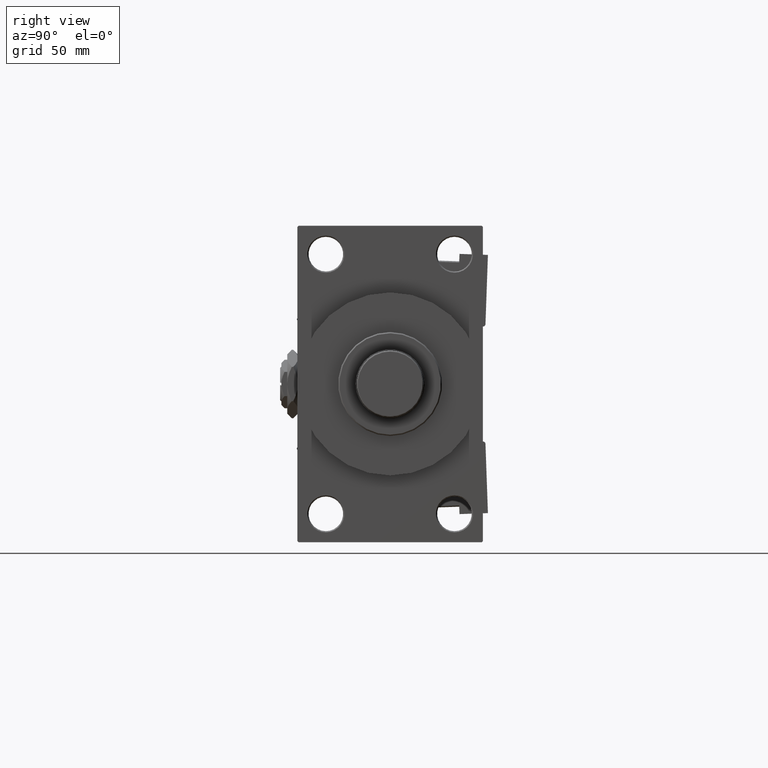
[diagram: clean part render]
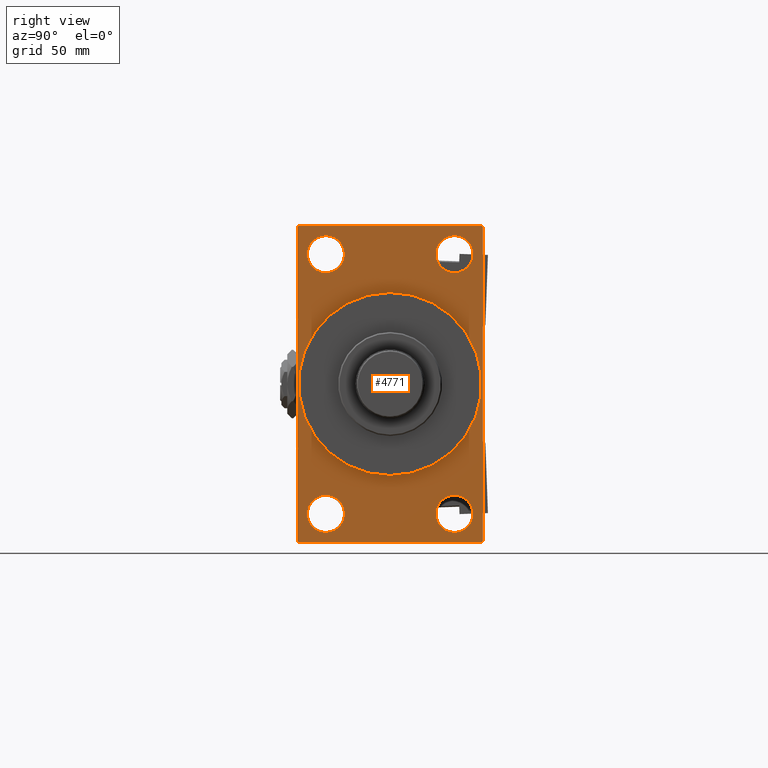
[diagram: same view with one face highlighted and labeled with its STEP entity id]
A machine part, right view. The second image highlights one B-rep face of the part: STEP entity #4771.
In plain terms, the highlighted planar face has unit normal (-1, 0, 0).
Its self-contained STEP definition (entity closure, byte-faithful):
#94 = VECTOR ( 'NONE', #32045, 1000.000000000000000 ) ;
#463 = EDGE_CURVE ( 'NONE', #10619, #44096, #44467, .T. ) ;
#511 = VERTEX_POINT ( 'NONE', #24531 ) ;
#587 = VECTOR ( 'NONE', #44616, 1000.000000000000000 ) ;
#634 = AXIS2_PLACEMENT_3D ( 'NONE', #23341, #39342, #27802 ) ;
#1005 = CARTESIAN_POINT ( 'NONE',  ( 167.9999999999999716, 37.49999999999999289, -63.50000000000001421 ) ) ;
#1022 = LINE ( 'NONE', #16527, #587 ) ;
#1245 = VERTEX_POINT ( 'NONE', #42417 ) ;
#1397 = VERTEX_POINT ( 'NONE', #9028 ) ;
#1630 = CARTESIAN_POINT ( 'NONE',  ( 167.9999999999999716, -25.99999999999999645, 52.50000000000000000 ) ) ;
#2341 = VERTEX_POINT ( 'NONE', #31078 ) ;
#2364 = CARTESIAN_POINT ( 'NONE',  ( 167.9999999999999716, 26.00000000000000000, -52.49999999999999289 ) ) ;
#2486 = CARTESIAN_POINT ( 'NONE',  ( 167.9999999999999716, -25.99999999999999645, -60.00000000000000000 ) ) ;
#2882 = ORIENTED_EDGE ( 'NONE', *, *, #20352, .T. ) ;
#3032 = CIRCLE ( 'NONE', #10564, 7.500000000000007105 ) ;
#3689 = EDGE_CURVE ( 'NONE', #42280, #511, #14860, .T. ) ;
#3713 = CARTESIAN_POINT ( 'NONE',  ( 167.9999999999999716, -25.99999999999999645, -44.99999999999998579 ) ) ;
#3884 = FACE_OUTER_BOUND ( 'NONE', #49627, .T. ) ;
#3921 = EDGE_LOOP ( 'NONE', ( #24857, #25163 ) ) ;
#4039 = CARTESIAN_POINT ( 'NONE',  ( 167.9999999999999716, -37.49999999999999289, 63.50000000000000000 ) ) ;
#4134 = VERTEX_POINT ( 'NONE', #23977 ) ;
#4135 = DIRECTION ( 'NONE',  ( -0.000000000000000000, 0.7071067811865376918, 0.7071067811865573427 ) ) ;
#4194 = CIRCLE ( 'NONE', #19303, 7.500000000000007105 ) ;
#4771 = ADVANCED_FACE ( 'NONE', ( #50915, #7045, #51435, #15455, #7308, #3884 ), #28062, .F. ) ;
#4924 = EDGE_CURVE ( 'NONE', #24704, #2341, #8604, .T. ) ;
#5695 = DIRECTION ( 'NONE',  ( 0.000000000000000000, 0.7071067811865573427, -0.7071067811865378028 ) ) ;
#5732 = CARTESIAN_POINT ( 'NONE',  ( 167.9999999999999716, 26.00000000000000000, -52.49999999999999289 ) ) ;
#5768 = AXIS2_PLACEMENT_3D ( 'NONE', #49268, #12260, #36411 ) ;
#6797 = ORIENTED_EDGE ( 'NONE', *, *, #20649, .T. ) ;
#7045 = FACE_BOUND ( 'NONE', #18859, .T. ) ;
#7180 = EDGE_CURVE ( 'NONE', #24121, #18329, #30128, .T. ) ;
#7308 = FACE_BOUND ( 'NONE', #11552, .T. ) ;
#7585 = ORIENTED_EDGE ( 'NONE', *, *, #17393, .F. ) ;
#7637 = CIRCLE ( 'NONE', #36129, 37.00000000000000000 ) ;
#7645 = LINE ( 'NONE', #27108, #16072 ) ;
#8514 = CARTESIAN_POINT ( 'NONE',  ( 167.9999999999999716, -37.49999999999999289, 63.50000000000000000 ) ) ;
#8604 = LINE ( 'NONE', #32775, #11546 ) ;
#9028 = CARTESIAN_POINT ( 'NONE',  ( 167.9999999999999716, -25.99999999999999645, 60.00000000000000711 ) ) ;
#10217 = CARTESIAN_POINT ( 'NONE',  ( 167.9999999999999716, -25.99999999999999645, 52.50000000000000000 ) ) ;
#10551 = DIRECTION ( 'NONE',  ( 0.000000000000000000, -0.7071067811865474617, 0.7071067811865474617 ) ) ;
#10564 = AXIS2_PLACEMENT_3D ( 'NONE', #2364, #29957, #50169 ) ;
#10619 = VERTEX_POINT ( 'NONE', #30543 ) ;
#10743 = EDGE_LOOP ( 'NONE', ( #6797, #38582 ) ) ;
#10809 = LINE ( 'NONE', #34713, #34260 ) ;
#11041 = LINE ( 'NONE', #19699, #94 ) ;
#11115 = CARTESIAN_POINT ( 'NONE',  ( 167.9999999999999716, 26.00000000000000000, 60.00000000000000000 ) ) ;
#11546 = VECTOR ( 'NONE', #5695, 1000.000000000000000 ) ;
#11552 = EDGE_LOOP ( 'NONE', ( #49260, #18860 ) ) ;
#11697 = VECTOR ( 'NONE', #4135, 1000.000000000000114 ) ;
#12014 = ORIENTED_EDGE ( 'NONE', *, *, #33351, .T. ) ;
#12049 = ORIENTED_EDGE ( 'NONE', *, *, #4924, .T. ) ;
#12222 = EDGE_CURVE ( 'NONE', #51936, #24735, #44032, .T. ) ;
#12260 = DIRECTION ( 'NONE',  ( 1.000000000000000000, 0.000000000000000000, 0.000000000000000000 ) ) ;
#12300 = AXIS2_PLACEMENT_3D ( 'NONE', #10217, #38302, #42241 ) ;
#13144 = ORIENTED_EDGE ( 'NONE', *, *, #13320, .T. ) ;
#13320 = EDGE_CURVE ( 'NONE', #32092, #10619, #45607, .T. ) ;
#13468 = DIRECTION ( 'NONE',  ( 0.000000000000000000, 0.000000000000000000, 1.000000000000000000 ) ) ;
#13530 = EDGE_CURVE ( 'NONE', #24282, #48552, #4194, .T. ) ;
#13741 = CIRCLE ( 'NONE', #24641, 7.500000000000007105 ) ;
#13915 = CARTESIAN_POINT ( 'NONE',  ( 167.9999999999999716, 26.00000000000000000, -60.00000000000000000 ) ) ;
#14860 = CIRCLE ( 'NONE', #40817, 7.500000000000007105 ) ;
#15455 = FACE_BOUND ( 'NONE', #42320, .T. ) ;
#15498 = EDGE_CURVE ( 'NONE', #18329, #24121, #7637, .T. ) ;
#15760 = CARTESIAN_POINT ( 'NONE',  ( 167.9999999999999716, 37.50000000000000000, 63.49999999999998579 ) ) ;
#16072 = VECTOR ( 'NONE', #43094, 1000.000000000000000 ) ;
#16491 = CIRCLE ( 'NONE', #12300, 7.500000000000007105 ) ;
#16527 = CARTESIAN_POINT ( 'NONE',  ( 167.9999999999999716, -37.49999999999999289, 63.99999999999997158 ) ) ;
#16555 = EDGE_CURVE ( 'NONE', #28999, #24735, #11041, .T. ) ;
#17061 = DIRECTION ( 'NONE',  ( -1.000000000000000000, 0.000000000000000000, -0.000000000000000000 ) ) ;
#17386 = ORIENTED_EDGE ( 'NONE', *, *, #463, .T. ) ;
#17393 = EDGE_CURVE ( 'NONE', #51936, #2341, #7645, .T. ) ;
#18329 = VERTEX_POINT ( 'NONE', #26855 ) ;
#18859 = EDGE_LOOP ( 'NONE', ( #48236, #38343 ) ) ;
#18860 = ORIENTED_EDGE ( 'NONE', *, *, #15498, .F. ) ;
#19303 = AXIS2_PLACEMENT_3D ( 'NONE', #29808, #41596, #37927 ) ;
#19518 = VERTEX_POINT ( 'NONE', #13915 ) ;
#19699 = CARTESIAN_POINT ( 'NONE',  ( 167.9999999999999716, 37.50000000000000000, 63.99999999999998579 ) ) ;
#20352 = EDGE_CURVE ( 'NONE', #511, #42280, #38002, .T. ) ;
#20649 = EDGE_CURVE ( 'NONE', #4134, #1397, #28683, .T. ) ;
#20999 = VECTOR ( 'NONE', #25927, 1000.000000000000000 ) ;
#21968 = AXIS2_PLACEMENT_3D ( 'NONE', #43404, #31097, #26642 ) ;
#23341 = CARTESIAN_POINT ( 'NONE',  ( 167.9999999999999716, 0.000000000000000000, 0.000000000000000000 ) ) ;
#23679 = AXIS2_PLACEMENT_3D ( 'NONE', #1630, #37091, #13468 ) ;
#23977 = CARTESIAN_POINT ( 'NONE',  ( 167.9999999999999716, -25.99999999999999645, 44.99999999999999289 ) ) ;
#24121 = VERTEX_POINT ( 'NONE', #33181 ) ;
#24282 = VERTEX_POINT ( 'NONE', #3713 ) ;
#24531 = CARTESIAN_POINT ( 'NONE',  ( 167.9999999999999716, 26.00000000000000000, 44.99999999999998579 ) ) ;
#24641 = AXIS2_PLACEMENT_3D ( 'NONE', #34714, #51246, #50737 ) ;
#24704 = VERTEX_POINT ( 'NONE', #43554 ) ;
#24735 = VERTEX_POINT ( 'NONE', #1005 ) ;
#24857 = ORIENTED_EDGE ( 'NONE', *, *, #31284, .T. ) ;
#25163 = ORIENTED_EDGE ( 'NONE', *, *, #43442, .T. ) ;
#25204 = CARTESIAN_POINT ( 'NONE',  ( 167.9999999999999716, 26.00000000000000000, 52.49999999999999289 ) ) ;
#25206 = CARTESIAN_POINT ( 'NONE',  ( 167.9999999999999716, 37.00000000000002132, -64.00000000000000000 ) ) ;
#25927 = DIRECTION ( 'NONE',  ( 0.000000000000000000, -1.000000000000000000, -1.850371707708594563E-16 ) ) ;
#26642 = DIRECTION ( 'NONE',  ( 0.000000000000000000, 0.000000000000000000, 1.000000000000000000 ) ) ;
#26855 = CARTESIAN_POINT ( 'NONE',  ( 167.9999999999999716, 4.531193156845206793E-15, -37.00000000000000000 ) ) ;
#27108 = CARTESIAN_POINT ( 'NONE',  ( 167.9999999999999716, 37.49999999999999289, -64.00000000000000000 ) ) ;
#27802 = DIRECTION ( 'NONE',  ( -0.000000000000000000, 0.000000000000000000, 1.000000000000000000 ) ) ;
#28062 = PLANE ( 'NONE',  #634 ) ;
#28683 = CIRCLE ( 'NONE', #23679, 7.500000000000007105 ) ;
#28999 = VERTEX_POINT ( 'NONE', #15760 ) ;
#29239 = EDGE_CURVE ( 'NONE', #1397, #4134, #16491, .T. ) ;
#29808 = CARTESIAN_POINT ( 'NONE',  ( 167.9999999999999716, -25.99999999999999645, -52.49999999999999289 ) ) ;
#29957 = DIRECTION ( 'NONE',  ( -1.000000000000000000, 0.000000000000000000, -0.000000000000000000 ) ) ;
#30128 = CIRCLE ( 'NONE', #5768, 37.00000000000000000 ) ;
#30543 = CARTESIAN_POINT ( 'NONE',  ( 167.9999999999999716, -37.00000000000001421, 63.99999999999997158 ) ) ;
#31078 = CARTESIAN_POINT ( 'NONE',  ( 167.9999999999999716, -36.99999999999999289, -64.00000000000001421 ) ) ;
#31097 = DIRECTION ( 'NONE',  ( -1.000000000000000000, 0.000000000000000000, -0.000000000000000000 ) ) ;
#31284 = EDGE_CURVE ( 'NONE', #19518, #1245, #3032, .T. ) ;
#31292 = ORIENTED_EDGE ( 'NONE', *, *, #16555, .F. ) ;
#32045 = DIRECTION ( 'NONE',  ( 0.000000000000000000, -5.421010862427522170E-17, -1.000000000000000000 ) ) ;
#32092 = VERTEX_POINT ( 'NONE', #49653 ) ;
#32775 = CARTESIAN_POINT ( 'NONE',  ( 167.9999999999999716, -36.99999999999999289, -64.00000000000001421 ) ) ;
#33069 = ORIENTED_EDGE ( 'NONE', *, *, #36517, .T. ) ;
#33181 = CARTESIAN_POINT ( 'NONE',  ( 167.9999999999999716, 0.000000000000000000, 37.00000000000000000 ) ) ;
#33351 = EDGE_CURVE ( 'NONE', #44096, #24704, #1022, .T. ) ;
#34260 = VECTOR ( 'NONE', #10551, 1000.000000000000114 ) ;
#34713 = CARTESIAN_POINT ( 'NONE',  ( 167.9999999999999716, 37.00000000000000000, 63.99999999999998579 ) ) ;
#34714 = CARTESIAN_POINT ( 'NONE',  ( 167.9999999999999716, -25.99999999999999645, -52.49999999999999289 ) ) ;
#35706 = DIRECTION ( 'NONE',  ( 1.000000000000000000, 0.000000000000000000, 0.000000000000000000 ) ) ;
#36129 = AXIS2_PLACEMENT_3D ( 'NONE', #39888, #35706, #43309 ) ;
#36411 = DIRECTION ( 'NONE',  ( 0.000000000000000000, 0.000000000000000000, -1.000000000000000000 ) ) ;
#36517 = EDGE_CURVE ( 'NONE', #28999, #32092, #10809, .T. ) ;
#37091 = DIRECTION ( 'NONE',  ( -1.000000000000000000, 0.000000000000000000, -0.000000000000000000 ) ) ;
#37278 = ORIENTED_EDGE ( 'NONE', *, *, #12222, .T. ) ;
#37732 = CIRCLE ( 'NONE', #46954, 7.500000000000007105 ) ;
#37927 = DIRECTION ( 'NONE',  ( 0.000000000000000000, 0.000000000000000000, 1.000000000000000000 ) ) ;
#38002 = CIRCLE ( 'NONE', #21968, 7.500000000000007105 ) ;
#38170 = VECTOR ( 'NONE', #39747, 1000.000000000000000 ) ;
#38302 = DIRECTION ( 'NONE',  ( -1.000000000000000000, 0.000000000000000000, -0.000000000000000000 ) ) ;
#38343 = ORIENTED_EDGE ( 'NONE', *, *, #13530, .T. ) ;
#38582 = ORIENTED_EDGE ( 'NONE', *, *, #29239, .T. ) ;
#39342 = DIRECTION ( 'NONE',  ( -1.000000000000000000, 0.000000000000000000, -0.000000000000000000 ) ) ;
#39747 = DIRECTION ( 'NONE',  ( -0.000000000000000000, -0.7071067811865524577, -0.7071067811865426878 ) ) ;
#39888 = CARTESIAN_POINT ( 'NONE',  ( 167.9999999999999716, 0.000000000000000000, 0.000000000000000000 ) ) ;
#40098 = CARTESIAN_POINT ( 'NONE',  ( 167.9999999999999716, 37.49999999999999289, -63.50000000000001421 ) ) ;
#40817 = AXIS2_PLACEMENT_3D ( 'NONE', #25204, #17061, #45153 ) ;
#41183 = DIRECTION ( 'NONE',  ( -1.000000000000000000, 0.000000000000000000, -0.000000000000000000 ) ) ;
#41596 = DIRECTION ( 'NONE',  ( -1.000000000000000000, 0.000000000000000000, -0.000000000000000000 ) ) ;
#42241 = DIRECTION ( 'NONE',  ( 0.000000000000000000, 0.000000000000000000, 1.000000000000000000 ) ) ;
#42280 = VERTEX_POINT ( 'NONE', #11115 ) ;
#42320 = EDGE_LOOP ( 'NONE', ( #2882, #43522 ) ) ;
#42417 = CARTESIAN_POINT ( 'NONE',  ( 167.9999999999999716, 26.00000000000000000, -44.99999999999998579 ) ) ;
#43094 = DIRECTION ( 'NONE',  ( 0.000000000000000000, -1.000000000000000000, -1.850371707708594563E-16 ) ) ;
#43309 = DIRECTION ( 'NONE',  ( 0.000000000000000000, 0.000000000000000000, -1.000000000000000000 ) ) ;
#43404 = CARTESIAN_POINT ( 'NONE',  ( 167.9999999999999716, 26.00000000000000000, 52.49999999999999289 ) ) ;
#43442 = EDGE_CURVE ( 'NONE', #1245, #19518, #37732, .T. ) ;
#43522 = ORIENTED_EDGE ( 'NONE', *, *, #3689, .T. ) ;
#43554 = CARTESIAN_POINT ( 'NONE',  ( 167.9999999999999716, -37.49999999999999289, -63.50000000000002842 ) ) ;
#44032 = LINE ( 'NONE', #40098, #11697 ) ;
#44096 = VERTEX_POINT ( 'NONE', #8514 ) ;
#44467 = LINE ( 'NONE', #4039, #38170 ) ;
#44616 = DIRECTION ( 'NONE',  ( 0.000000000000000000, 0.000000000000000000, -1.000000000000000000 ) ) ;
#45153 = DIRECTION ( 'NONE',  ( 0.000000000000000000, 0.000000000000000000, 1.000000000000000000 ) ) ;
#45607 = LINE ( 'NONE', #49554, #20999 ) ;
#45647 = DIRECTION ( 'NONE',  ( 0.000000000000000000, 0.000000000000000000, 1.000000000000000000 ) ) ;
#46954 = AXIS2_PLACEMENT_3D ( 'NONE', #5732, #41183, #45647 ) ;
#48087 = EDGE_CURVE ( 'NONE', #48552, #24282, #13741, .T. ) ;
#48236 = ORIENTED_EDGE ( 'NONE', *, *, #48087, .T. ) ;
#48552 = VERTEX_POINT ( 'NONE', #2486 ) ;
#49260 = ORIENTED_EDGE ( 'NONE', *, *, #7180, .F. ) ;
#49268 = CARTESIAN_POINT ( 'NONE',  ( 167.9999999999999716, 0.000000000000000000, 0.000000000000000000 ) ) ;
#49554 = CARTESIAN_POINT ( 'NONE',  ( 167.9999999999999716, 37.50000000000000000, 63.99999999999998579 ) ) ;
#49627 = EDGE_LOOP ( 'NONE', ( #12014, #12049, #7585, #37278, #31292, #33069, #13144, #17386 ) ) ;
#49653 = CARTESIAN_POINT ( 'NONE',  ( 167.9999999999999716, 37.00000000000000000, 63.99999999999998579 ) ) ;
#50169 = DIRECTION ( 'NONE',  ( 0.000000000000000000, 0.000000000000000000, 1.000000000000000000 ) ) ;
#50737 = DIRECTION ( 'NONE',  ( 0.000000000000000000, 0.000000000000000000, 1.000000000000000000 ) ) ;
#50915 = FACE_BOUND ( 'NONE', #10743, .T. ) ;
#51246 = DIRECTION ( 'NONE',  ( -1.000000000000000000, 0.000000000000000000, -0.000000000000000000 ) ) ;
#51435 = FACE_BOUND ( 'NONE', #3921, .T. ) ;
#51936 = VERTEX_POINT ( 'NONE', #25206 ) ;